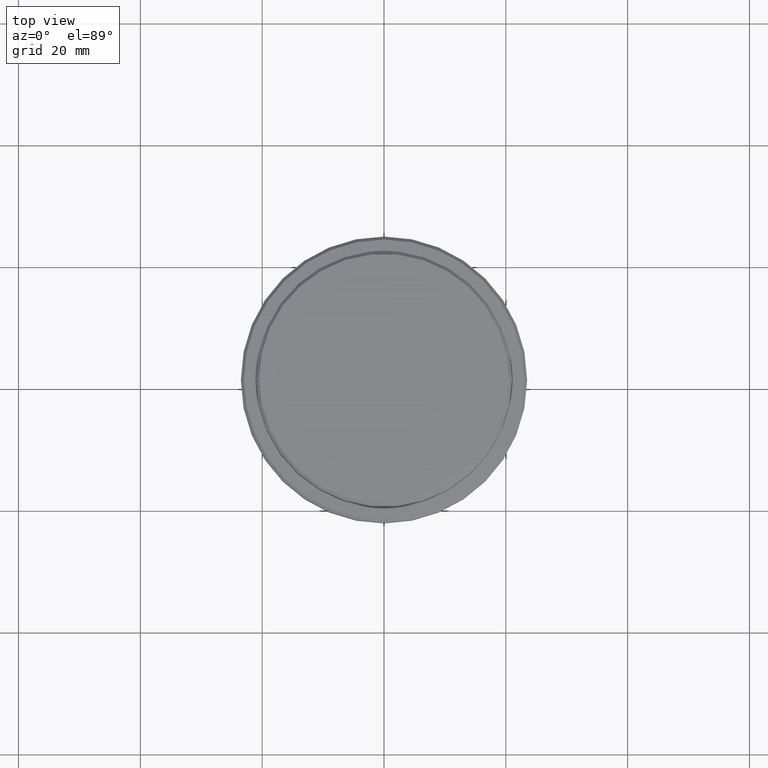
[diagram: clean part render]
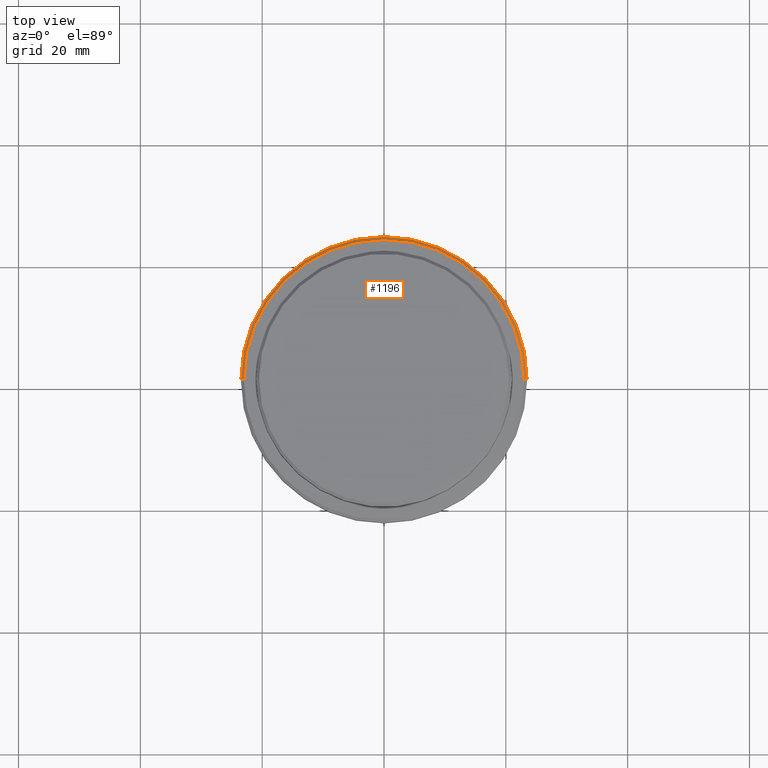
[diagram: same view with one face highlighted and labeled with its STEP entity id]
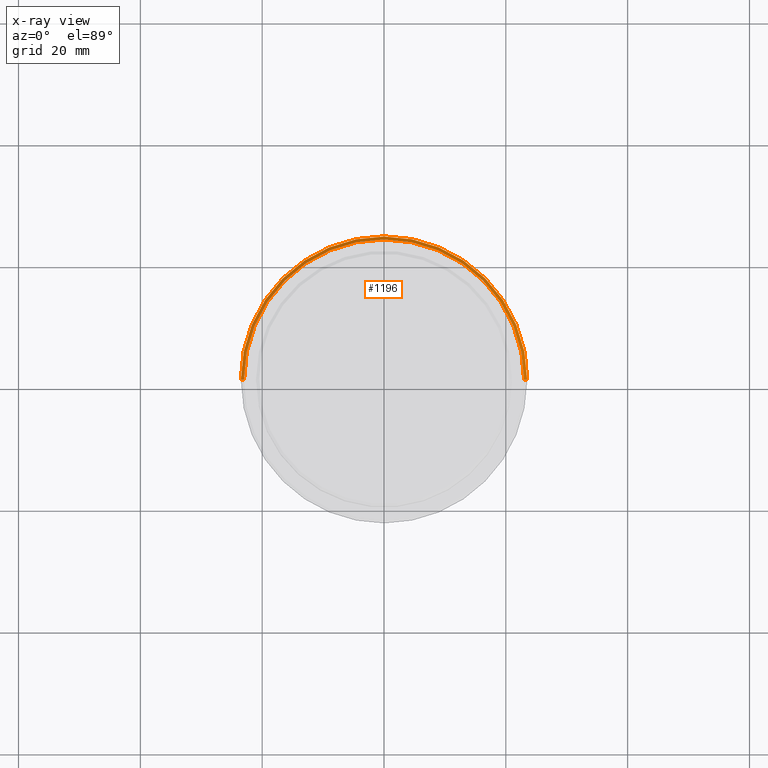
[diagram: x-ray of the same camera — body ghosted, the highlighted face saturated]
A machine part, top view. The second image highlights one B-rep face of the part: STEP entity #1196.
The next image is the same camera in x-ray: the body ghosted, the highlighted face saturated — about 0% of this face is hidden behind the body in this view.
In plain terms, the highlighted conical surface has half-angle 45 deg.
Its self-contained STEP definition (entity closure, byte-faithful):
#27 = CONICAL_SURFACE ( 'NONE', #372, 22.99999999999999645, 0.7853981633974378429 ) ;
#79 = EDGE_CURVE ( 'NONE', #545, #542, #1295, .T. ) ;
#80 = CARTESIAN_POINT ( 'NONE',  ( 22.99999999999999645, 2.847303808017596139E-15, -9.000000000000000000 ) ) ;
#85 = FACE_OUTER_BOUND ( 'NONE', #434, .T. ) ;
#187 = LINE ( 'NONE', #303, #469 ) ;
#210 = CARTESIAN_POINT ( 'NONE',  ( -23.50000000000000000, 2.877919977996280320E-15, -9.500000000000014211 ) ) ;
#230 = CARTESIAN_POINT ( 'NONE',  ( 23.50000000000000000, 0.000000000000000000, -9.500000000000014211 ) ) ;
#272 = DIRECTION ( 'NONE',  ( -0.7071067811865401342, 0.000000000000000000, -0.7071067811865549002 ) ) ;
#303 = CARTESIAN_POINT ( 'NONE',  ( 22.99999999999999645, 2.816687638038911957E-15, -9.000000000000000000 ) ) ;
#372 = AXIS2_PLACEMENT_3D ( 'NONE', #858, #845, #405 ) ;
#405 = DIRECTION ( 'NONE',  ( -1.000000000000000000, 0.000000000000000000, 0.000000000000000000 ) ) ;
#411 = AXIS2_PLACEMENT_3D ( 'NONE', #501, #609, #1065 ) ;
#434 = EDGE_LOOP ( 'NONE', ( #1104, #555, #793, #1210 ) ) ;
#453 = EDGE_CURVE ( 'NONE', #772, #545, #1384, .T. ) ;
#469 = VECTOR ( 'NONE', #948, 1000.000000000000000 ) ;
#501 = CARTESIAN_POINT ( 'NONE',  ( 0.000000000000000000, 0.000000000000000000, -9.500000000000014211 ) ) ;
#542 = VERTEX_POINT ( 'NONE', #230 ) ;
#545 = VERTEX_POINT ( 'NONE', #210 ) ;
#555 = ORIENTED_EDGE ( 'NONE', *, *, #1258, .T. ) ;
#580 = AXIS2_PLACEMENT_3D ( 'NONE', #653, #1211, #969 ) ;
#609 = DIRECTION ( 'NONE',  ( 0.000000000000000000, 0.000000000000000000, -1.000000000000000000 ) ) ;
#653 = CARTESIAN_POINT ( 'NONE',  ( 0.000000000000000000, 0.000000000000000000, -9.000000000000000000 ) ) ;
#772 = VERTEX_POINT ( 'NONE', #1075 ) ;
#793 = ORIENTED_EDGE ( 'NONE', *, *, #79, .F. ) ;
#810 = VECTOR ( 'NONE', #272, 1000.000000000000000 ) ;
#845 = DIRECTION ( 'NONE',  ( 0.000000000000000000, 0.000000000000000000, -1.000000000000000000 ) ) ;
#858 = CARTESIAN_POINT ( 'NONE',  ( 0.000000000000000000, 0.000000000000000000, -9.000000000000000000 ) ) ;
#948 = DIRECTION ( 'NONE',  ( 0.7071067811865401342, 8.659560562354842879E-17, -0.7071067811865549002 ) ) ;
#969 = DIRECTION ( 'NONE',  ( 1.000000000000000000, 0.000000000000000000, 0.000000000000000000 ) ) ;
#1057 = CARTESIAN_POINT ( 'NONE',  ( -22.99999999999999645, 0.000000000000000000, -9.000000000000000000 ) ) ;
#1065 = DIRECTION ( 'NONE',  ( 1.000000000000000000, 0.000000000000000000, 0.000000000000000000 ) ) ;
#1075 = CARTESIAN_POINT ( 'NONE',  ( -22.99999999999999645, 0.000000000000000000, -9.000000000000000000 ) ) ;
#1104 = ORIENTED_EDGE ( 'NONE', *, *, #1411, .F. ) ;
#1196 = ADVANCED_FACE ( 'NONE', ( #85 ), #27, .T. ) ;
#1210 = ORIENTED_EDGE ( 'NONE', *, *, #453, .F. ) ;
#1211 = DIRECTION ( 'NONE',  ( -0.000000000000000000, -0.000000000000000000, 1.000000000000000000 ) ) ;
#1225 = VERTEX_POINT ( 'NONE', #80 ) ;
#1258 = EDGE_CURVE ( 'NONE', #1225, #542, #187, .T. ) ;
#1295 = CIRCLE ( 'NONE', #411, 23.50000000000000000 ) ;
#1316 = CIRCLE ( 'NONE', #580, 22.99999999999999645 ) ;
#1384 = LINE ( 'NONE', #1057, #810 ) ;
#1411 = EDGE_CURVE ( 'NONE', #1225, #772, #1316, .T. ) ;